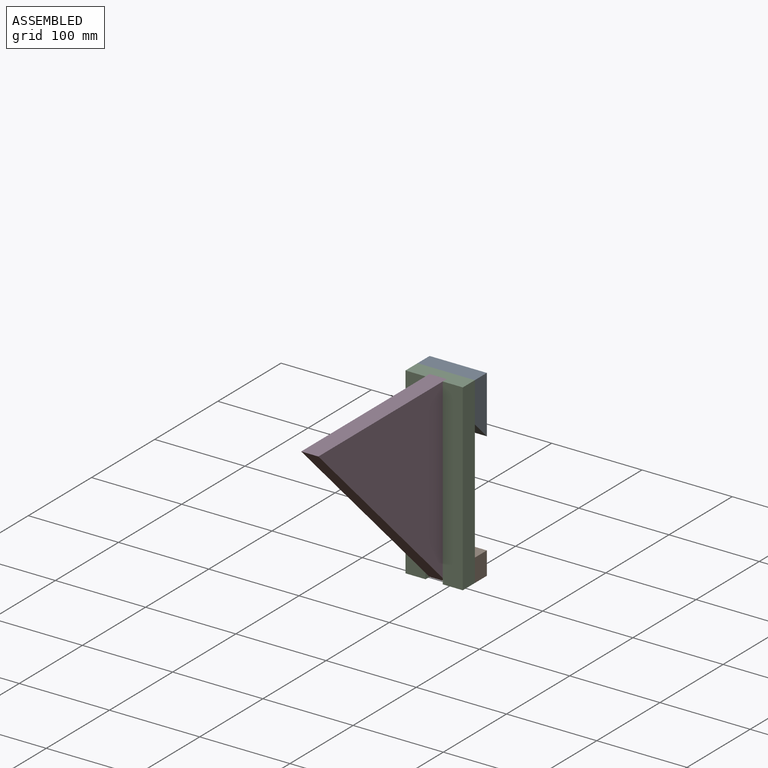
[diagram: assembled view]
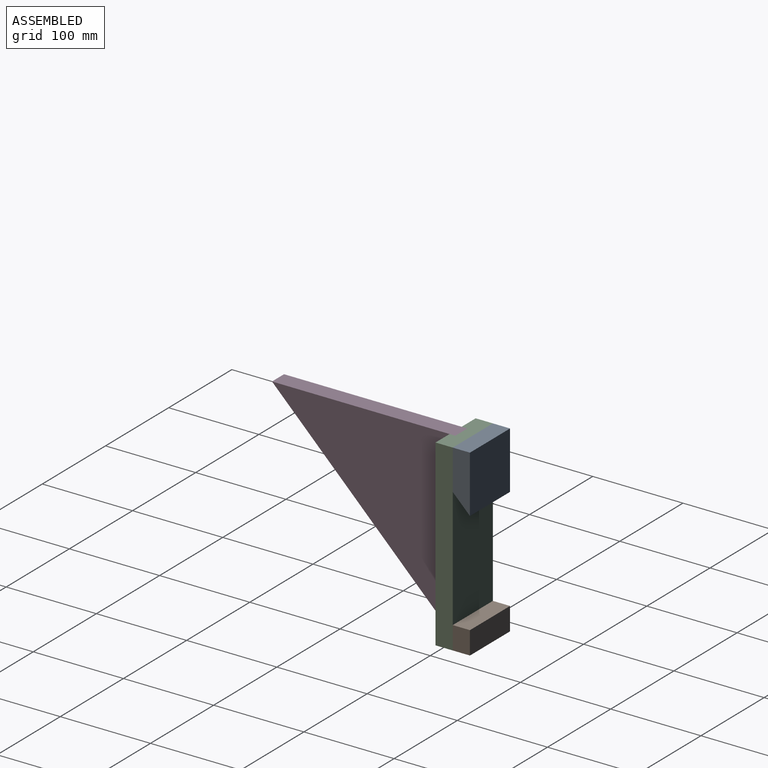
[diagram: assembled view, second angle]
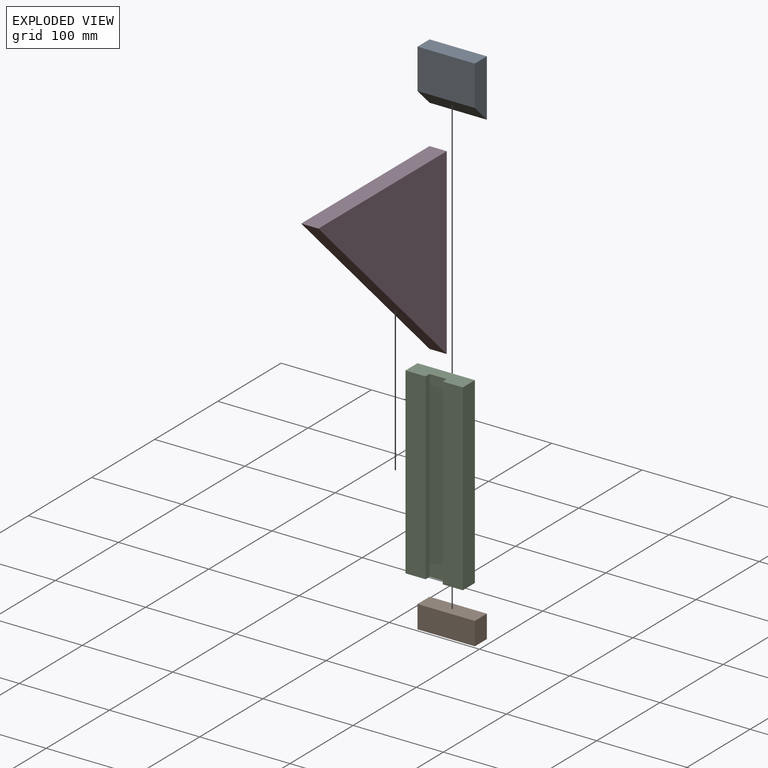
[diagram: exploded view]
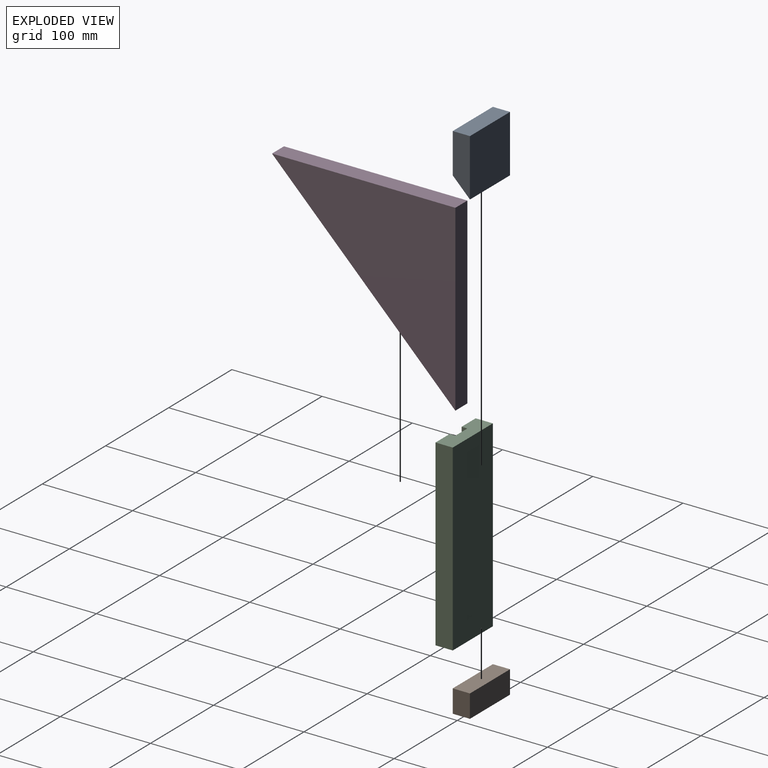
[diagram: exploded view, second angle]
ASSEMBLY  parts=4 mates=3
PART A: 6 faces, bbox 63.5x19.1x63.5 mm
  f0: plane 63.5x44.45mm, normal (0,-1,0), area 2822.6mm2, adj f1,f3,f4,f5
  f1: plane 63.5x19.05mm, normal (0,-0.71,-0.71), area 1710.7mm2, adj f0,f2,f4,f5
  f2: plane 63.5x63.5mm, normal (0,1,0), area 4032.3mm2, adj f1,f3,f4,f5
  f3: plane 63.5x19.05mm, normal (0,0,1), area 1209.7mm2, adj f0,f2,f4,f5
  f4: plane 63.5x19.05mm, normal (1,0,0), area 1028.2mm2, adj f0,f1,f2,f3
  f5: plane 63.5x19.05mm, normal (-1,0,0), area 1028.2mm2, adj f0,f1,f2,f3
PART B: 6 faces, bbox 63.5x19.1x25.4 mm
  f0: plane 63.5x19.05mm, normal (0,0,1), area 1209.7mm2, adj f1,f3,f4,f5
  f1: plane 25.4x19.05mm, normal (1,0,0), area 483.9mm2, adj f0,f2,f4,f5
  f2: plane 63.5x19.05mm, normal (0,0,-1), area 1209.7mm2, adj f1,f3,f4,f5
  f3: plane 25.4x19.05mm, normal (-1,0,0), area 483.9mm2, adj f0,f2,f4,f5
  f4: plane 63.5x25.4mm, normal (0,1,0), area 1612.9mm2, adj f0,f1,f2,f3
  f5: plane 63.5x25.4mm, normal (0,-1,0), area 1612.9mm2, adj f0,f1,f2,f3
PART C: 10 faces, bbox 63.5x19.1x203.2 mm
  f0: plane 203.2x22.23mm, normal (0,-1,0), area 4516.1mm2, adj f3,f5,f6,f8
  f1: plane 203.2x19.05mm, normal (1,0,0), area 3871mm2, adj f2,f4,f5,f6
  f2: plane 203.2x63.5mm, normal (0,1,0), area 12903.2mm2, adj f1,f3,f5,f6
  f3: plane 203.2x19.05mm, normal (-1,0,0), area 3871mm2, adj f0,f2,f5,f6
  f4: plane 203.2x22.23mm, normal (0,-1,0), area 4516.1mm2, adj f1,f5,f6,f7
  f5: plane 63.5x19.05mm, normal (0,0,-1), area 1088.7mm2, adj f0,f1,f2,f3,f4,f7,f8,f9
  f6: plane 63.5x19.05mm, normal (0,0,1), area 1088.7mm2, adj f0,f1,f2,f3,f4,f7,f8,f9
  f7: plane 203.2x6.35mm, normal (-1,0,0), area 1290.3mm2, adj f4,f5,f6,f9
  f8: plane 203.2x6.35mm, normal (1,0,0), area 1290.3mm2, adj f0,f5,f6,f9
  f9: plane 203.2x19.05mm, normal (0,-1,0), area 3871mm2, adj f5,f6,f7,f8
PART D: 5 faces, bbox 19.1x203.2x203.2 mm
  f0: plane 203.2x203.2mm, normal (0,-0.71,-0.71), area 5474.4mm2, adj f1,f2,f3,f4
  f1: plane 203.2x19.05mm, normal (0,0,1), area 3871mm2, adj f0,f2,f3,f4
  f2: plane 203.2x19.05mm, normal (0,1,0), area 3871mm2, adj f0,f1,f3,f4
  f3: plane 203.2x203.2mm, normal (-1,0,0), area 20645.1mm2, adj f0,f1,f2
  f4: plane 203.2x203.2mm, normal (1,0,0), area 20645.1mm2, adj f0,f1,f2
PLACE A t=(-64.57,13.3,-33)mm
PLACE B t=(-64.57,13.3,-33)mm
PLACE C t=(-64.57,13.3,-33)mm
PLACE D t=(-64.57,13.3,-33)mm
MATE fastened D.f1 <-> C.f6  axis (0,0,1) through (-42.35,-18.45,87.65)mm
MATE fastened A.f3 <-> C.f6  axis (0,0,1) through (-64.57,-5.75,87.65)mm
MATE fastened B.f2 <-> C.f5  axis (0,0,-1) through (-64.57,-5.75,-115.55)mm
